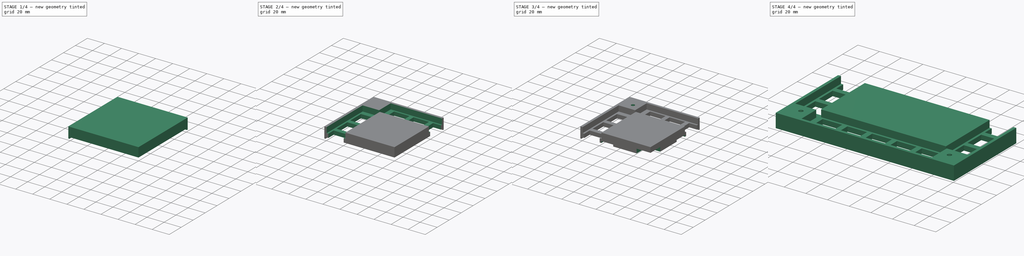
[diagram: build sequence overview — one tinted view per stage of 4, left to right]
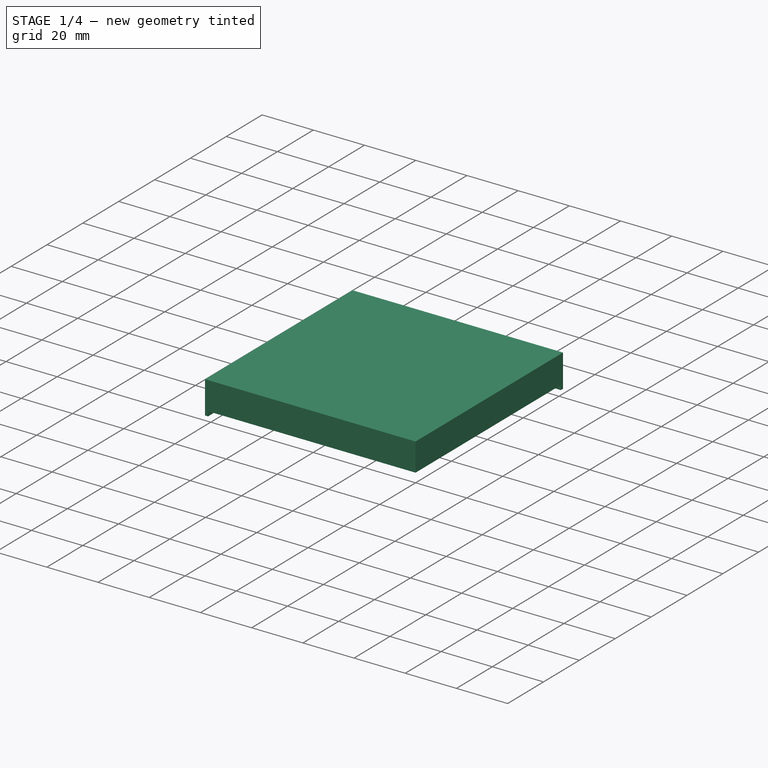
[diagram: stage 1 of 4 — iso view after this stage's code; geometry added in this stage tinted green]
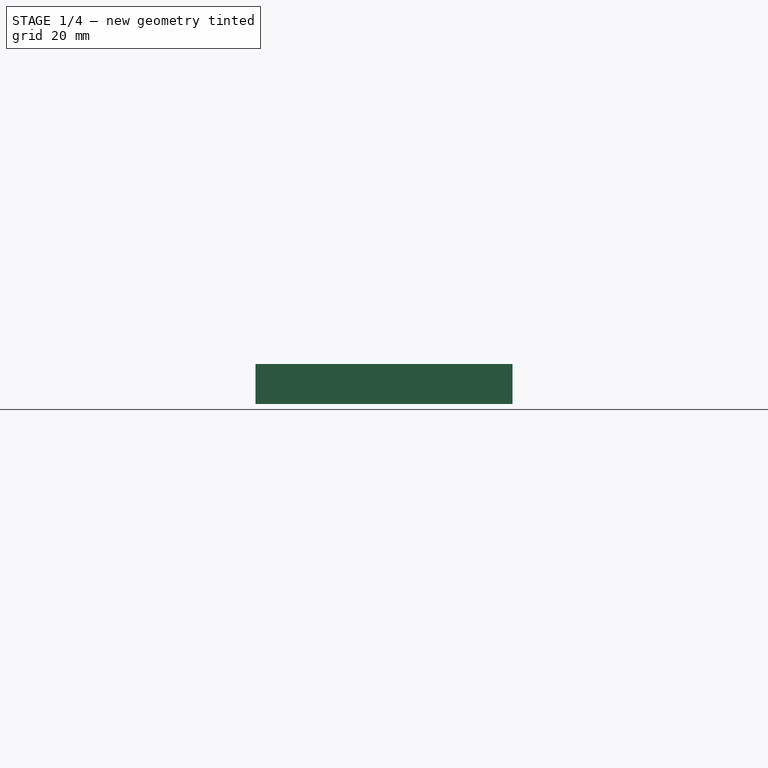
[diagram: stage 1 of 4 — front view after this stage's code; geometry added in this stage tinted green]
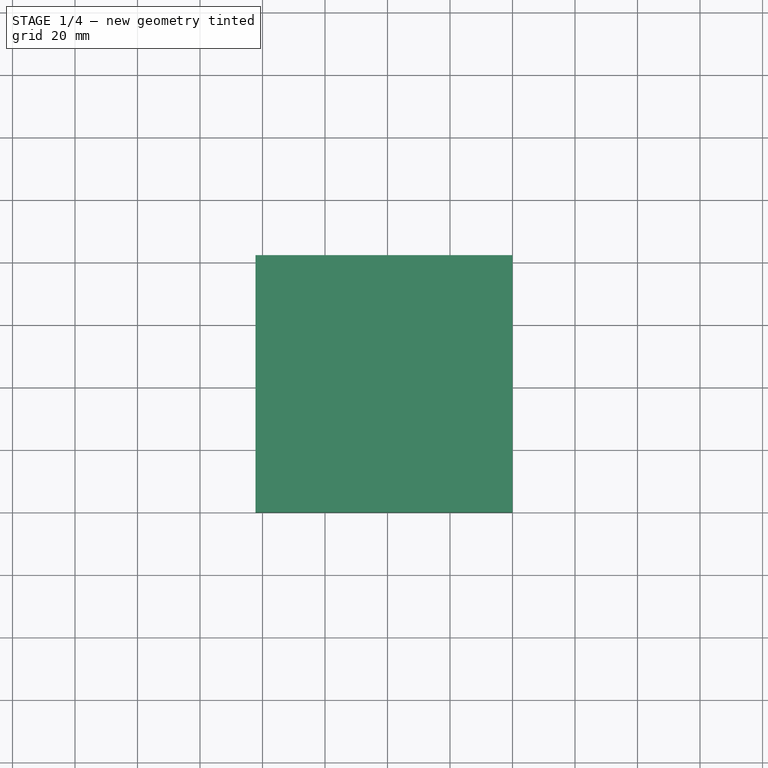
[diagram: stage 1 of 4 — top view after this stage's code; geometry added in this stage tinted green]
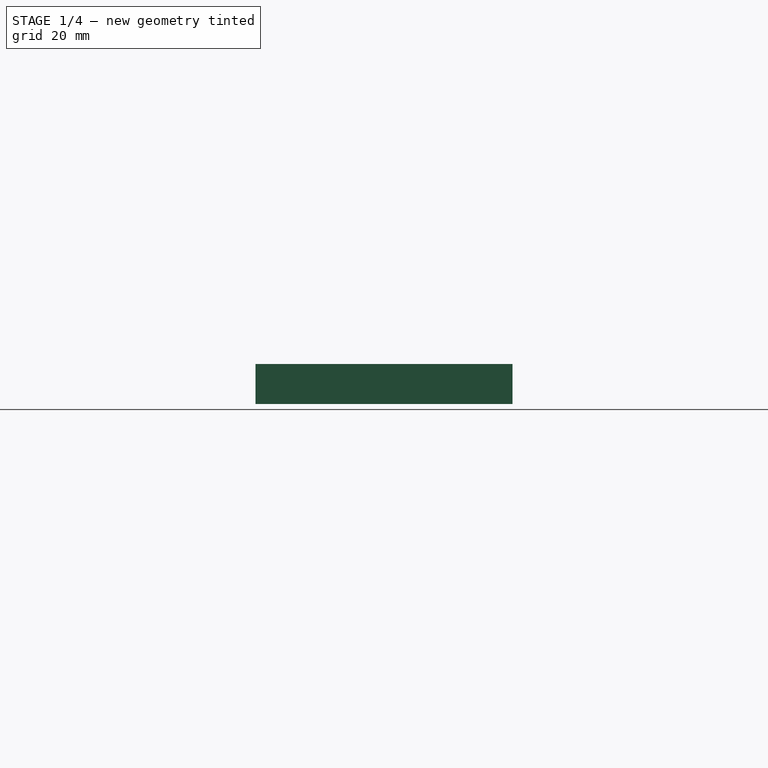
[diagram: stage 1 of 4 — right view after this stage's code; geometry added in this stage tinted green]
FCSTD DOCUMENT  (FreeCAD 0.20R29603 (Git))
Label: case_top
License: All rights reserved
LicenseURL: http://en.wikipedia.org/wiki/All_rights_reserved
objects: Sketcher::SketchObject×7, PartDesign::Pocket×5, PartDesign::Pad×2, PartDesign::Mirrored×1, PartDesign::MultiTransform×1, PartDesign::Body×1, Part::Mirroring×1
note: 25 computed .brp shape members not serialized (recipe doc carries the construction recipe); baked Part::Feature solids carry a one-line shape summary decoded from their .brp

FEATURE [Sketcher::SketchObject] Sketch
  FullyConstrained = true
  MapMode = 5
  Support = -> [XY_Plane]
  sketch-geometry (4):
    g0: LineSegment StartX=0 StartY=0 StartZ=0 EndX=-82.25 EndY=0 EndZ=0
    g1: LineSegment StartX=-82.25 StartY=0 StartZ=0 EndX=-82.25 EndY=82.25 EndZ=0
    g2: LineSegment StartX=-82.25 StartY=82.25 StartZ=0 EndX=0 EndY=82.25 EndZ=0
    g3: LineSegment StartX=0 StartY=82.25 StartZ=0 EndX=0 EndY=0 EndZ=0
  constraints (11):
    c: Coincident(g0,g1)
    c: Coincident(g1,g2)
    c: Coincident(g2,g3)
    c: Coincident(g3,g0)
    c: Horizontal(g0)
    c: Horizontal(g2)
    c: Vertical(g1)
    c: Vertical(g3)
    c: Coincident(g0,g-1)
    c: Equal(g3,g0)
    c: DistanceY(g3,g3) = 82.25
FEATURE [PartDesign::Pad] Pad
  Direction = (0,0,1)
  Length = 11
  Length2 = 10
  Profile = -> Sketch
  ReferenceAxis = -> Sketch [N_Axis]
  Type = 0
FEATURE [Sketcher::SketchObject] Sketch001
  ExternalGeometry = -> [Pad]
  FullyConstrained = true
  MapMode = 5
  Placement = pos=(0,0,0) rot=(1,0,0;3.14159rad)
  Support = -> [Pad]
  sketch-geometry (6):
    g0: LineSegment StartX=-82.25 StartY=0 StartZ=0 EndX=-82.25 EndY=-82.25 EndZ=0
    g1: LineSegment StartX=-82.25 StartY=-82.25 StartZ=0 EndX=0 EndY=-82.25 EndZ=0
    g2: LineSegment StartX=0 StartY=-82.25 StartZ=0 EndX=0 EndY=-81.05 EndZ=0
    g3: LineSegment StartX=0 StartY=-81.05 StartZ=0 EndX=-81.05 EndY=-81.05 EndZ=0
    g4: LineSegment StartX=-81.05 StartY=-81.05 StartZ=0 EndX=-81.05 EndY=0 EndZ=0
    g5: LineSegment StartX=-81.05 StartY=0 StartZ=0 EndX=-82.25 EndY=0 EndZ=0
  constraints (15):
    c: Coincident(g0,g-3)
    c: Coincident(g0,g-4)
    c: Coincident(g0,g1)
    c: Coincident(g1,g-5)
    c: Coincident(g1,g2)
    c: Vertical(g2)
    c: Coincident(g2,g3)
    c: Horizontal(g3)
    c: Coincident(g3,g4)
    c: Vertical(g4)
    c: Coincident(g4,g5)
    c: Coincident(g5,g0)
    c: Horizontal(g5)
    c: Equal(g2,g5)
    c: DistanceY(g2,g2) = 1.2
FEATURE [PartDesign::Pad] Pad001
  BaseFeature = -> Pad
  Direction = (0,0,-1)
  Length = 1.8
  Length2 = 10
  Profile = -> Sketch001
  ReferenceAxis = -> Sketch001 [N_Axis]
  Type = 0
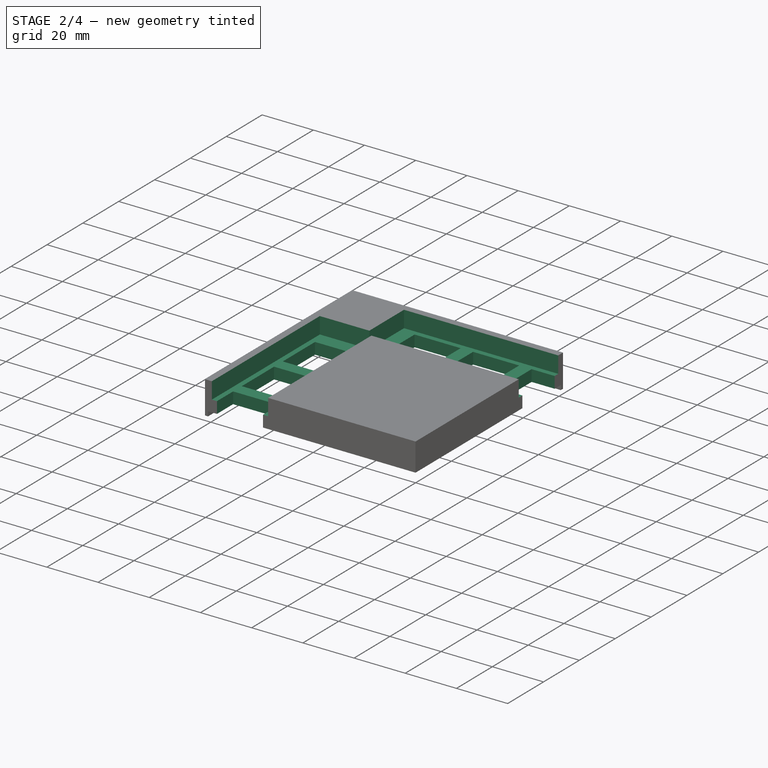
[diagram: stage 2 of 4 — iso view after this stage's code; geometry added in this stage tinted green]
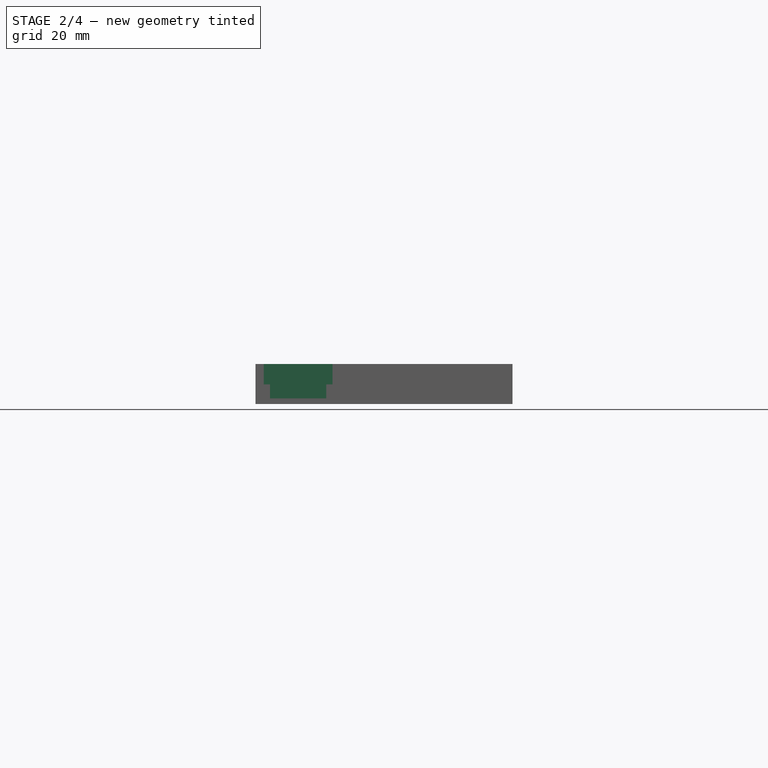
[diagram: stage 2 of 4 — front view after this stage's code; geometry added in this stage tinted green]
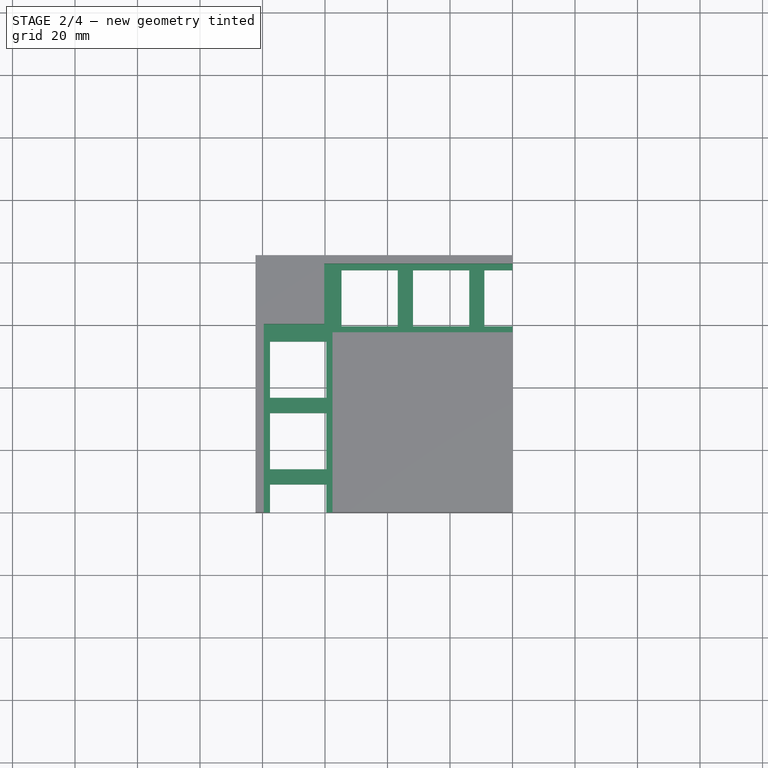
[diagram: stage 2 of 4 — top view after this stage's code; geometry added in this stage tinted green]
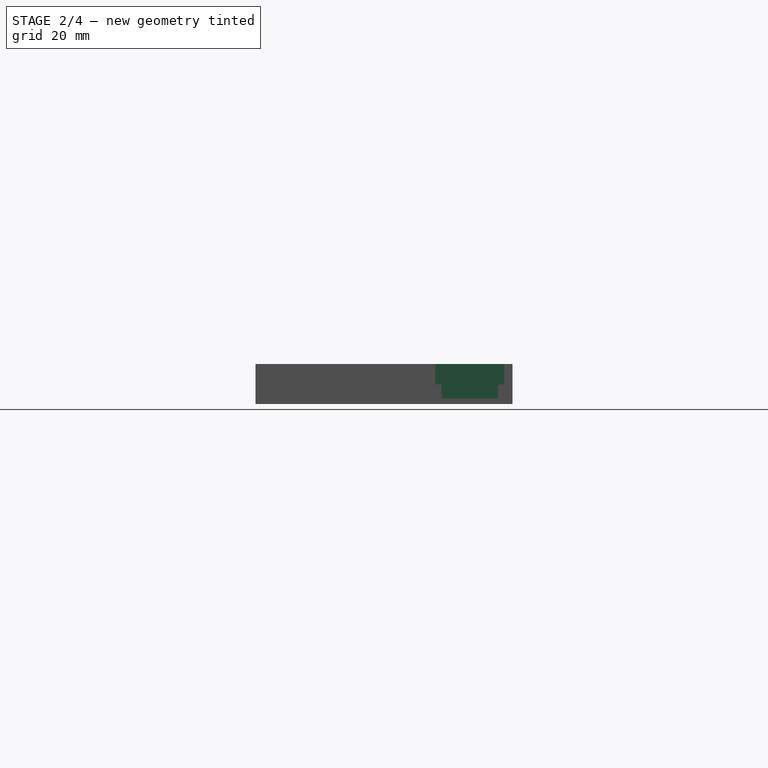
[diagram: stage 2 of 4 — right view after this stage's code; geometry added in this stage tinted green]
FEATURE [Sketcher::SketchObject] Sketch002
  AttachmentOffset = pos=(0,0,0) rot=(0,0,-1;1.5708rad)
  ExternalGeometry = -> [Pad001]
  FullyConstrained = true
  MapMode = 5
  Placement = pos=(0,0,11) rot=(0,0,-1;1.5708rad)
  Support = -> [Pad001]
  sketch-geometry (18):
    g0: LineSegment StartX=0 StartY=0 StartZ=0 EndX=-78.744 EndY=0 EndZ=0
    g1: LineSegment StartX=-78.744 StartY=0 StartZ=0 EndX=-78.744 EndY=-78.744 EndZ=0
    g2: LineSegment StartX=-78.744 StartY=-78.744 StartZ=0 EndX=0 EndY=-78.744 EndZ=0
    g3: LineSegment StartX=0 StartY=-78.744 StartZ=0 EndX=0 EndY=0 EndZ=0
    g4: LineSegment StartX=0 StartY=0 StartZ=0 EndX=-79.25 EndY=0 EndZ=0
    g5: LineSegment StartX=-79.25 StartY=0 StartZ=0 EndX=-79.25 EndY=79.25 EndZ=0
    g6: LineSegment StartX=-79.25 StartY=79.25 StartZ=0 EndX=0 EndY=79.25 EndZ=0
    g7: LineSegment StartX=0 StartY=79.25 StartZ=0 EndX=0 EndY=0 EndZ=0
    g8: LineSegment StartX=-79.584 StartY=0 StartZ=0 EndX=-79.584 EndY=-60.25 EndZ=0
    g9: LineSegment StartX=-79.584 StartY=-60.25 StartZ=0 EndX=-60.25 EndY=-60.25 EndZ=0
    g10: LineSegment StartX=-60.25 StartY=-60.25 StartZ=0 EndX=-60.25 EndY=-79.584 EndZ=0
    g11: LineSegment StartX=-60.25 StartY=-79.584 StartZ=0 EndX=0 EndY=-79.584 EndZ=0
    g12: LineSegment StartX=0 StartY=-79.584 StartZ=0 EndX=0 EndY=-57.584 EndZ=0
    g13: LineSegment StartX=0 StartY=-57.584 StartZ=0 EndX=-57.584 EndY=-57.584 EndZ=0
    g14: LineSegment StartX=-57.584 StartY=-57.584 StartZ=0 EndX=-57.584 EndY=0 EndZ=0
    g15: LineSegment StartX=-57.584 StartY=0 StartZ=0 EndX=-79.584 EndY=0 EndZ=0
    g16: GeomPoint X=-68.584 Y=0 Z=0
    g17: GeomPoint X=0 Y=-68.584 Z=0
  constraints (48):
    c: Coincident(g0,g1)
    c: Coincident(g1,g2)
    c: Coincident(g2,g3)
    c: Coincident(g3,g0)
    c: Horizontal(g0)
    c: Horizontal(g2)
    c: Vertical(g1)
    c: Vertical(g3)
    c: Coincident(g0,g-1)
    c: Equal(g2,g1)
    c: DistanceX(g2,g2) = 78.744
    c: Coincident(g4,g5)
    c: Coincident(g5,g6)
    c: Coincident(g6,g7)
    c: Coincident(g7,g4)
    c: Horizontal(g4)
    c: Horizontal(g6)
    c: Vertical(g5)
    c: Vertical(g7)
    c: Coincident(g4,g0)
    c: Equal(g6,g5)
    c: DistanceX(g-3,g5) = 3
    c: Vertical(g8)
    c: Coincident(g8,g9)
    c: Horizontal(g9)
    c: Coincident(g9,g10)
    c: Vertical(g10)
    c: Coincident(g10,g11)
    c: Horizontal(g11)
    c: Coincident(g11,g12)
    c: PointOnObject(g12,g3)
    c: Coincident(g12,g13)
    c: Horizontal(g13)
    c: Coincident(g13,g14)
    c: PointOnObject(g14,g0)
    c: Vertical(g14)
    c: Coincident(g14,g15)
    c: Coincident(g15,g8)
    c: DistanceX(g15,g15) = 22
    c: Vertical(g12)
    c: DistanceY(g12,g12) = 22
    c: DistanceX(g-3,g10) = 22
    c: DistanceY(g-3,g8) = 22
    c: Horizontal(g15)
    c: Symmetric(g8,g14,g16)
    c: DistanceX(g0,g16) = 10.16
    c: Symmetric(g11,g12,g17)
    c: DistanceY(g2,g17) = 10.16
FEATURE [PartDesign::Pocket] Pocket
  BaseFeature = -> Pad001
  Direction = (0,0,-1)
  Length = 6.5
  Length2 = 5
  Profile = -> Sketch002
  ReferenceAxis = -> Sketch002 [N_Axis]
  Type = 0
FEATURE [Sketcher::SketchObject] Sketch003
  ExternalGeometry = -> [Pocket]
  FullyConstrained = true
  MapMode = 5
  Placement = pos=(0,0,4.5) rot=(0,0,1;0rad)
  Support = -> [Pocket]
  sketch-geometry (32):
    g0: LineSegment StartX=1.52e-14 StartY=68.584 StartZ=0 EndX=-68.584 EndY=68.584 EndZ=0
    g1: LineSegment StartX=-68.584 StartY=68.584 StartZ=0 EndX=-68.584 EndY=1.42e-14 EndZ=0
    g2: LineSegment StartX=-54.72 StartY=77.584 StartZ=0 EndX=-54.72 EndY=59.584 EndZ=0
    g3: LineSegment StartX=-54.72 StartY=59.584 StartZ=0 EndX=-36.72 EndY=59.584 EndZ=0
    g4: LineSegment StartX=-36.72 StartY=59.584 StartZ=0 EndX=-36.72 EndY=77.584 EndZ=0
    g5: LineSegment StartX=-36.72 StartY=77.584 StartZ=0 EndX=-54.72 EndY=77.584 EndZ=0
    g6: GeomPoint X=-45.72 Y=68.584 Z=0
    g7: LineSegment StartX=-31.86 StartY=77.584 StartZ=0 EndX=-31.86 EndY=59.584 EndZ=0
    g8: LineSegment StartX=-31.86 StartY=59.584 StartZ=0 EndX=-13.86 EndY=59.584 EndZ=0
    g9: LineSegment StartX=-13.86 StartY=59.584 StartZ=0 EndX=-13.86 EndY=77.584 EndZ=0
    g10: LineSegment StartX=-13.86 StartY=77.584 StartZ=0 EndX=-31.86 EndY=77.584 EndZ=0
    g11: GeomPoint X=-22.86 Y=68.584 Z=0
    g12: LineSegment StartX=1.52e-14 StartY=77.584 StartZ=0 EndX=-9 EndY=77.584 EndZ=0
    g13: LineSegment StartX=-9 StartY=77.584 StartZ=0 EndX=-9 EndY=59.584 EndZ=0
    g14: LineSegment StartX=-9 StartY=59.584 StartZ=0 EndX=1.6e-14 EndY=59.584 EndZ=0
    g15: LineSegment StartX=1.52e-14 StartY=59.584 StartZ=0 EndX=1.52e-14 EndY=77.584 EndZ=0
    g16: LineSegment StartX=-77.584 StartY=1.52e-14 StartZ=0 EndX=-59.584 EndY=1.52e-14 EndZ=0
    g17: LineSegment StartX=-59.584 StartY=1.52e-14 StartZ=0 EndX=-59.584 EndY=9 EndZ=0
    g18: LineSegment StartX=-59.584 StartY=9 StartZ=0 EndX=-77.584 EndY=9 EndZ=0
    g19: LineSegment StartX=-77.584 StartY=9 StartZ=0 EndX=-77.584 EndY=1.6e-14 EndZ=0
    g20: LineSegment StartX=-77.584 StartY=31.86 StartZ=0 EndX=-77.584 EndY=13.86 EndZ=0
    g21: LineSegment StartX=-77.584 StartY=13.86 StartZ=0 EndX=-59.584 EndY=13.86 EndZ=0
    g22: LineSegment StartX=-59.584 StartY=13.86 StartZ=0 EndX=-59.584 EndY=31.86 EndZ=0
    g23: LineSegment StartX=-59.584 StartY=31.86 StartZ=0 EndX=-77.584 EndY=31.86 EndZ=0
    g24: GeomPoint X=-68.584 Y=22.86 Z=0
    g25: LineSegment StartX=-77.584 StartY=54.72 StartZ=0 EndX=-77.584 EndY=36.72 EndZ=0
    g26: LineSegment StartX=-77.584 StartY=36.72 StartZ=0 EndX=-59.584 EndY=36.72 EndZ=0
    g27: LineSegment StartX=-59.584 StartY=36.72 StartZ=0 EndX=-59.584 EndY=54.72 EndZ=0
    g28: LineSegment StartX=-59.584 StartY=54.72 StartZ=0 EndX=-77.584 EndY=54.72 EndZ=0
    g29: GeomPoint X=-68.584 Y=45.72 Z=0
    g30: GeomPoint X=1.52e-14 Y=68.584 Z=0
    g31: GeomPoint X=-68.584 Y=1.52e-14 Z=0
  constraints (81):
    c: Horizontal(g0)
    c: Coincident(g0,g1)
    c: Vertical(g1)
    c: Symmetric(g-6,g-5,g0)
    c: Symmetric(g-3,g-4,g1)
    c: Coincident(g2,g3)
    c: Coincident(g3,g4)
    c: Coincident(g4,g5)
    c: Coincident(g5,g2)
    c: Horizontal(g3)
    c: Horizontal(g5)
    c: Vertical(g2)
    c: Vertical(g4)
    c: Symmetric(g3,g2,g6)
    c: PointOnObject(g6,g0)
    c: Coincident(g7,g8)
    c: Coincident(g8,g9)
    c: Coincident(g9,g10)
    c: Coincident(g10,g7)
    c: Horizontal(g8)
    c: Horizontal(g10)
    c: Vertical(g7)
    c: Vertical(g9)
    c: Symmetric(g8,g7,g11)
    c: PointOnObject(g11,g0)
    c: Coincident(g12,g13)
    c: Coincident(g13,g14)
    c: Coincident(g14,g15)
    c: Coincident(g15,g12)
    c: Horizontal(g12)
    c: Horizontal(g14)
    c: Vertical(g13)
    c: Vertical(g15)
    c: Coincident(g16,g17)
    c: Coincident(g17,g18)
    c: Coincident(g18,g19)
    c: Coincident(g19,g16)
    c: Horizontal(g16)
    c: Horizontal(g18)
    c: Vertical(g17)
    c: Vertical(g19)
    c: Coincident(g20,g21)
    c: Coincident(g21,g22)
    c: Coincident(g22,g23)
    c: Coincident(g23,g20)
    c: Horizontal(g21)
    c: Horizontal(g23)
    c: Vertical(g20)
    c: Vertical(g22)
    c: Symmetric(g21,g20,g24)
    c: PointOnObject(g24,g1)
    c: Coincident(g25,g26)
    c: Coincident(g26,g27)
    c: Coincident(g27,g28)
    c: Coincident(g28,g25)
    c: Horizontal(g26)
    c: Horizontal(g28)
    c: Vertical(g25)
    c: Vertical(g27)
    c: Symmetric(g26,g25,g29)
    c: PointOnObject(g29,g1)
    c: Equal(g3,g4)
    c: Equal(g9,g8)
    c: Equal(g26,g27)
    c: Equal(g22,g21)
    c: Equal(g21,g18)
    c: Equal(g18,g26)
    c: DistanceX(g18,g18) = 18
    c: Equal(g4,g7)
    c: Equal(g7,g13)
    c: DistanceY(g13,g13) = 18
    c: Symmetric(g12,g14,g30)
    c: Coincident(g30,g0)
    c: Symmetric(g16,g16,g31)
    c: Coincident(g31,g1)
    c: DistanceX(g11,g0) = 22.86
    c: DistanceX(g6,g11) = 22.86
    c: DistanceY(g1,g24) = 22.86
    c: DistanceY(g24,g29) = 22.86
    c: Equal(g14,g17)
    c: DistanceX(g14,g14) = 9
FEATURE [PartDesign::Pocket] Pocket001
  BaseFeature = -> Pocket
  Direction = (0,0,-1)
  Length = 5
  Length2 = 5
  Profile = -> Sketch003
  ReferenceAxis = -> Sketch003 [N_Axis]
  Type = 0
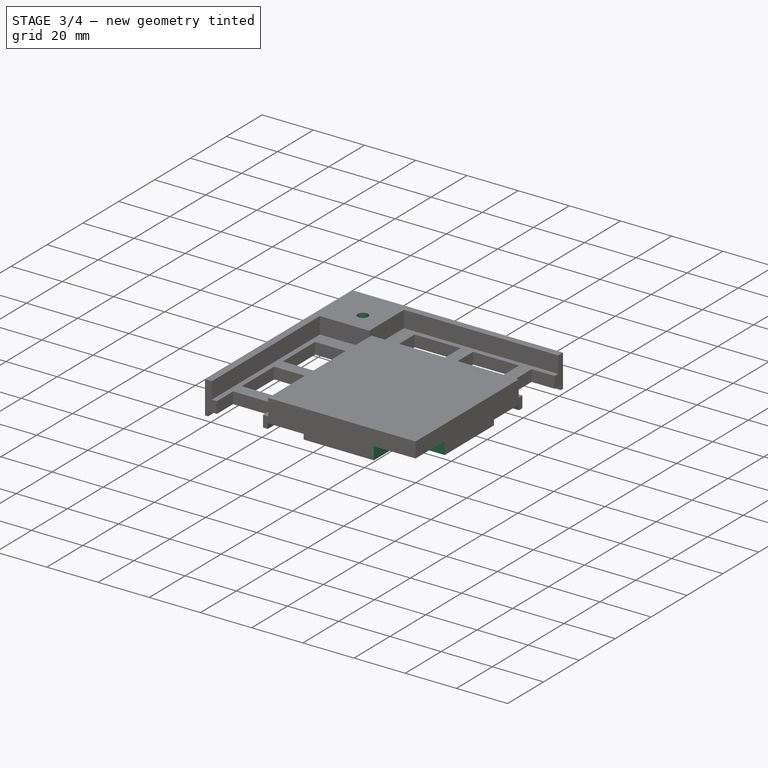
[diagram: stage 3 of 4 — iso view after this stage's code; geometry added in this stage tinted green]
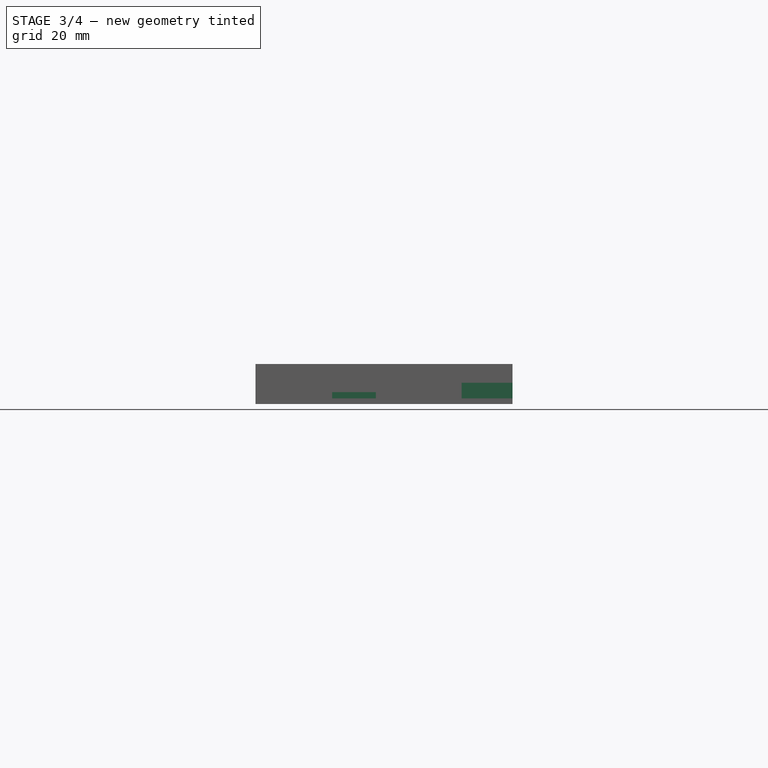
[diagram: stage 3 of 4 — front view after this stage's code; geometry added in this stage tinted green]
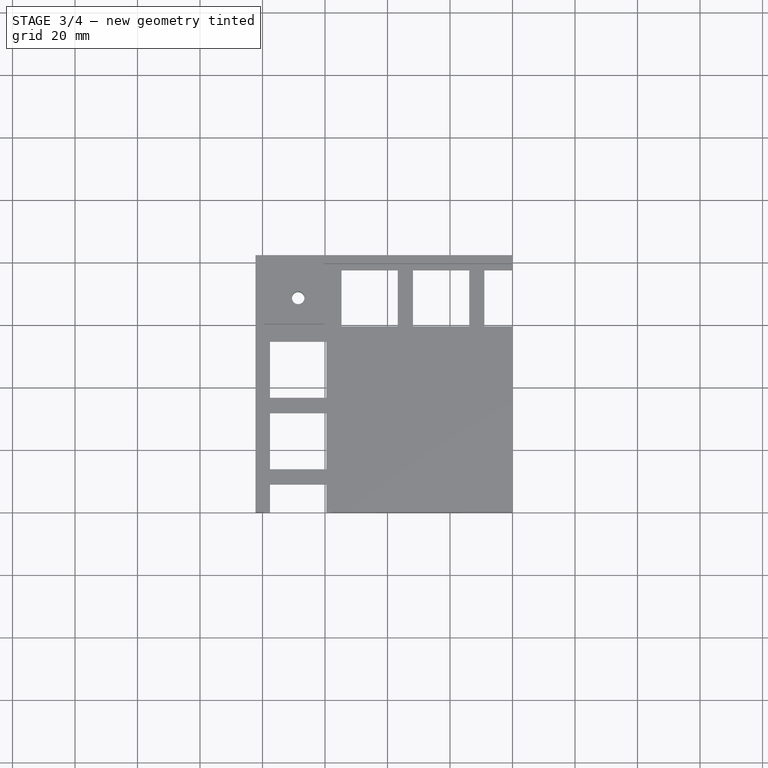
[diagram: stage 3 of 4 — top view after this stage's code; geometry added in this stage tinted green]
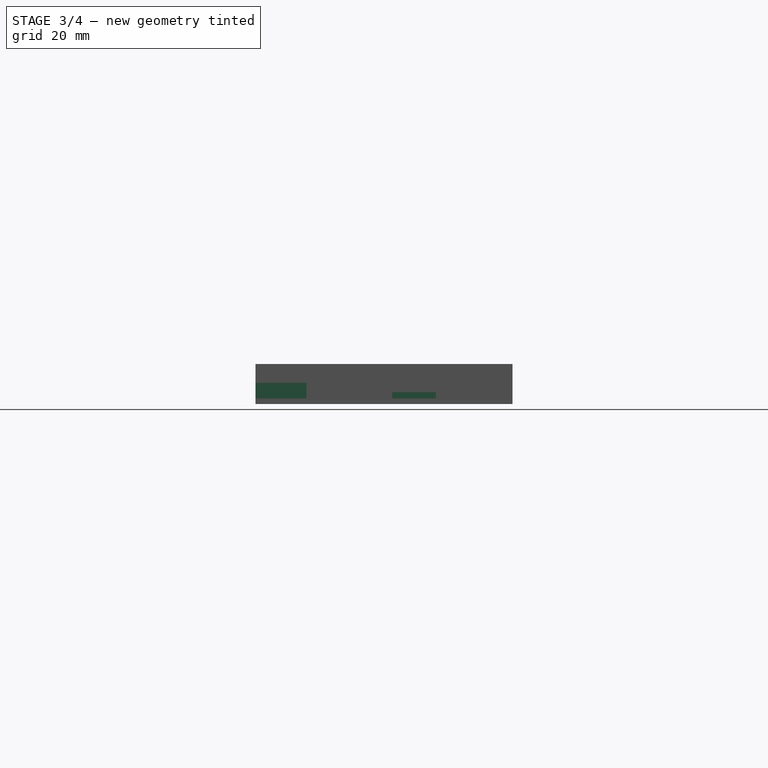
[diagram: stage 3 of 4 — right view after this stage's code; geometry added in this stage tinted green]
FEATURE [Sketcher::SketchObject] Sketch004
  ExternalGeometry = -> [Pocket001]
  FullyConstrained = true
  MapMode = 5
  Placement = pos=(0,0,0) rot=(1,0,0;3.14159rad)
  Support = -> [Pocket001]
  sketch-geometry (9):
    g0: LineSegment StartX=-77.584 StartY=-36.72 StartZ=0 EndX=-59.584 EndY=-54.72 EndZ=0
    g1: LineSegment StartX=-54.72 StartY=-59.584 StartZ=0 EndX=-36.72 EndY=-77.584 EndZ=0
    g2: GeomPoint X=-68.584 Y=-45.72 Z=0
    g3: GeomPoint X=-45.72 Y=-68.584 Z=0
    g4: LineSegment StartX=-68.584 StartY=-45.72 StartZ=0 EndX=-45.72 EndY=-45.72 EndZ=0
    g5: LineSegment StartX=-45.72 StartY=-45.72 StartZ=0 EndX=-45.72 EndY=-68.584 EndZ=0
    g6: LineSegment StartX=-45.72 StartY=-68.584 StartZ=0 EndX=-68.584 EndY=-68.584 EndZ=0
    g7: LineSegment StartX=-68.584 StartY=-68.584 StartZ=0 EndX=-68.584 EndY=-45.72 EndZ=0
    g8: Circle CenterX=-68.584 CenterY=-68.584 CenterZ=0 NormalX=0 NormalY=0 NormalZ=1 AngleXU=0 Radius=2
  constraints (18):
    c: Coincident(g0,g-4)
    c: Coincident(g0,g-3)
    c: Coincident(g1,g-6)
    c: Coincident(g1,g-5)
    c: Symmetric(g0,g0,g2)
    c: Symmetric(g1,g1,g3)
    c: Coincident(g4,g5)
    c: Coincident(g5,g6)
    c: Coincident(g6,g7)
    c: Coincident(g7,g4)
    c: Horizontal(g4)
    c: Horizontal(g6)
    c: Vertical(g5)
    c: Vertical(g7)
    c: Coincident(g4,g2)
    c: Coincident(g5,g3)
    c: Coincident(g8,g6)
    c: Diameter(g8) = 4
FEATURE [PartDesign::Pocket] Pocket002
  BaseFeature = -> Pocket001
  Direction = (0,0,1)
  Length = 13
  Length2 = 5
  Profile = -> Sketch004
  ReferenceAxis = -> Sketch004 [N_Axis]
  Type = 0
FEATURE [Sketcher::SketchObject] Sketch005
  FullyConstrained = true
  MapMode = 5
  Placement = pos=(0,0,0) rot=(1,0,0;3.14159rad)
  Support = -> [Pocket002]
  sketch-geometry (10):
    g0: LineSegment StartX=0 StartY=0 StartZ=0 EndX=-78.74 EndY=0 EndZ=0
    g1: LineSegment StartX=-78.74 StartY=0 StartZ=0 EndX=-78.74 EndY=-78.74 EndZ=0
    g2: LineSegment StartX=-78.74 StartY=-78.74 StartZ=0 EndX=0 EndY=-78.74 EndZ=0
    g3: LineSegment StartX=0 StartY=-78.74 StartZ=0 EndX=0 EndY=0 EndZ=0
    g4: LineSegment StartX=-57.74 StartY=4.86367e-11 StartZ=0 EndX=-57.74 EndY=-57.74 EndZ=0
    g5: LineSegment StartX=-57.74 StartY=-57.74 StartZ=0 EndX=3.4504e-11 EndY=-57.74 EndZ=0
    g6: LineSegment StartX=3.4504e-11 StartY=-57.74 StartZ=0 EndX=3.4504e-11 EndY=-43.74 EndZ=0
    g7: LineSegment StartX=3.4504e-11 StartY=-43.74 StartZ=0 EndX=-43.74 EndY=-43.74 EndZ=0
    g8: LineSegment StartX=-43.74 StartY=-43.74 StartZ=0 EndX=-43.74 EndY=4.86367e-11 EndZ=0
    g9: LineSegment StartX=-43.74 StartY=4.86367e-11 StartZ=0 EndX=-57.74 EndY=4.86367e-11 EndZ=0
  constraints (29):
    c: Coincident(g0,g1)
    c: Coincident(g1,g2)
    c: Coincident(g2,g3)
    c: Coincident(g3,g0)
    c: Horizontal(g0)
    c: Horizontal(g2)
    c: Vertical(g1)
    c: Vertical(g3)
    c: Coincident(g0,g-1)
    c: Equal(g2,g1)
    c: DistanceX(g2,g2) = 78.74
    c: Vertical(g4)
    c: Coincident(g4,g5)
    c: Horizontal(g5)
    c: Coincident(g5,g6)
    c: Coincident(g6,g7)
    c: Horizontal(g7)
    c: Coincident(g7,g8)
    c: Vertical(g8)
    c: Coincident(g8,g9)
    c: Coincident(g9,g4)
    c: Horizontal(g9)
    c: Vertical(g6)
    c: Equal(g9,g6)
    c: DistanceY(g2,g5) = 21
    c: DistanceX(g0,g4) = 21
    c: DistanceX(g0,g8) = 35
    c: PointOnObject(g6,g3)
    c: PointOnObject(g8,g0)
FEATURE [PartDesign::Pocket] Pocket003
  BaseFeature = -> Pocket002
  Direction = (0,0,1)
  Length = 2
  Length2 = 5
  Profile = -> Sketch005
  ReferenceAxis = -> Sketch005 [N_Axis]
  Type = 0
FEATURE [Sketcher::SketchObject] Sketch006
  FullyConstrained = true
  MapMode = 5
  Placement = pos=(0,0,0) rot=(1,0,0;3.14159rad)
  Support = -> [Pocket003]
  sketch-geometry (4):
    g0: LineSegment StartX=0 StartY=0 StartZ=0 EndX=-16.3 EndY=0 EndZ=0
    g1: LineSegment StartX=-16.3 StartY=0 StartZ=0 EndX=-16.3 EndY=-16.3 EndZ=0
    g2: LineSegment StartX=-16.3 StartY=-16.3 StartZ=0 EndX=0 EndY=-16.3 EndZ=0
    g3: LineSegment StartX=0 StartY=-16.3 StartZ=0 EndX=0 EndY=0 EndZ=0
  constraints (11):
    c: Coincident(g0,g1)
    c: Coincident(g1,g2)
    c: Coincident(g2,g3)
    c: Coincident(g3,g0)
    c: Horizontal(g0)
    c: Horizontal(g2)
    c: Vertical(g1)
    c: Vertical(g3)
    c: Coincident(g0,g-1)
    c: Equal(g2,g1)
    c: DistanceX(g2,g2) = 16.3
FEATURE [PartDesign::Pocket] Pocket004
  BaseFeature = -> Pocket003
  Direction = (0,0,1)
  Length = 5
  Length2 = 5
  Profile = -> Sketch006
  ReferenceAxis = -> Sketch006 [N_Axis]
  Type = 0
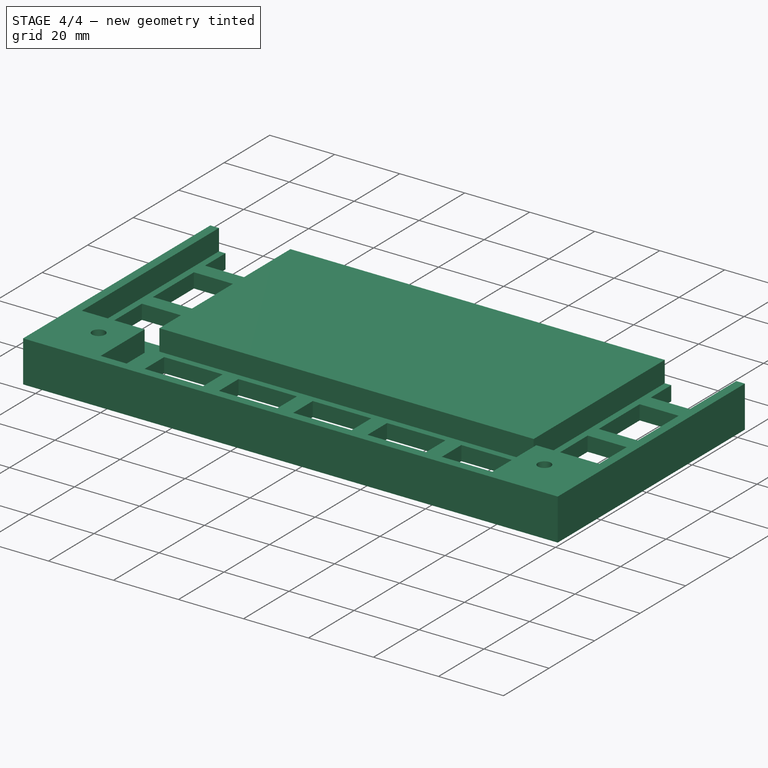
[diagram: stage 4 of 4 — iso view after this stage's code; geometry added in this stage tinted green]
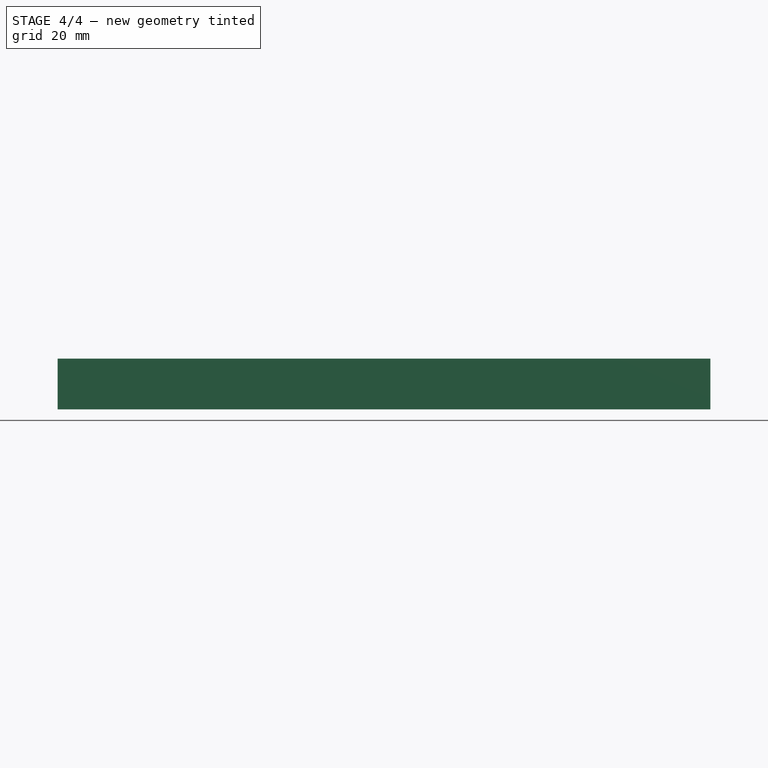
[diagram: stage 4 of 4 — front view after this stage's code; geometry added in this stage tinted green]
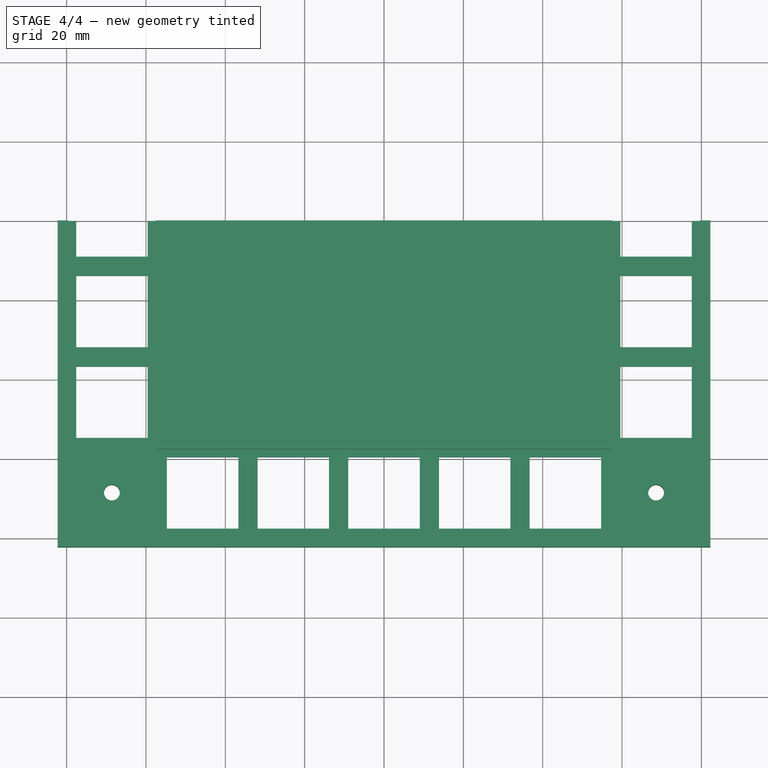
[diagram: stage 4 of 4 — top view after this stage's code; geometry added in this stage tinted green]
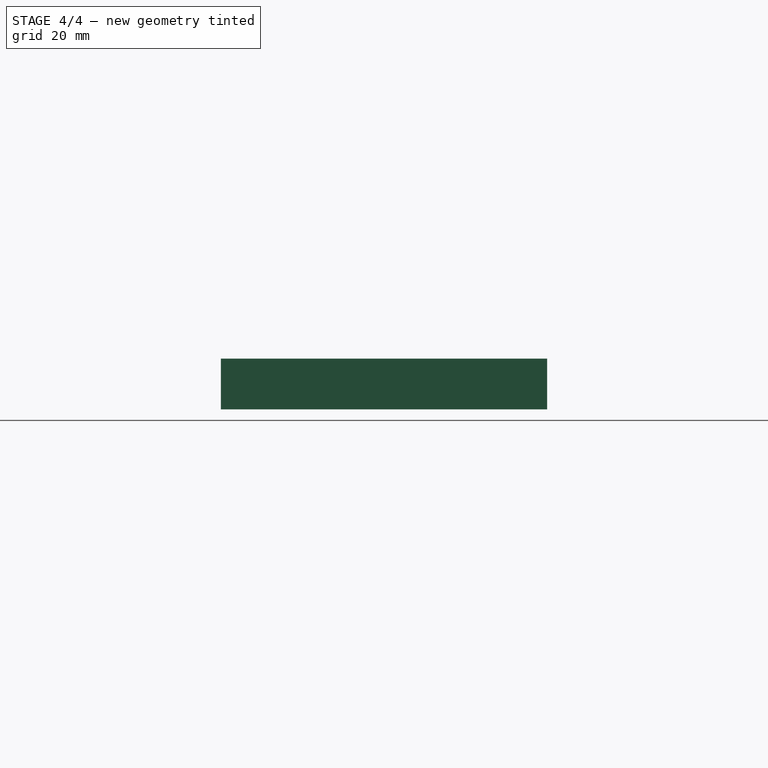
[diagram: stage 4 of 4 — right view after this stage's code; geometry added in this stage tinted green]
FEATURE [PartDesign::Mirrored] Mirrored
  MirrorPlane = -> YZ_Plane
FEATURE [PartDesign::MultiTransform] MultiTransform
  BaseFeature = -> Pocket004
  Originals = -> [Pad,Pad001,Pocket,Pocket001,Pocket002,Pocket003,Pocket004]
  Transformations = -> [Mirrored]
FEATURE [PartDesign::Body] Body
  Group = -> [Sketch,Pad,Sketch001,Pad001,Sketch002,Pocket,Sketch003,Pocket001,Sketch004,Pocket002,Sketch005,Pocket003,Sketch006,Pocket004,MultiTransform,Mirrored]
  Origin = -> Origin
  Tip = -> MultiTransform
FEATURE [Part::Mirroring] Part__Mirroring  label="Body (Mirror #1)"
  Base = (0,0,0)
  Normal = (0,1,0)
  Source = -> Body
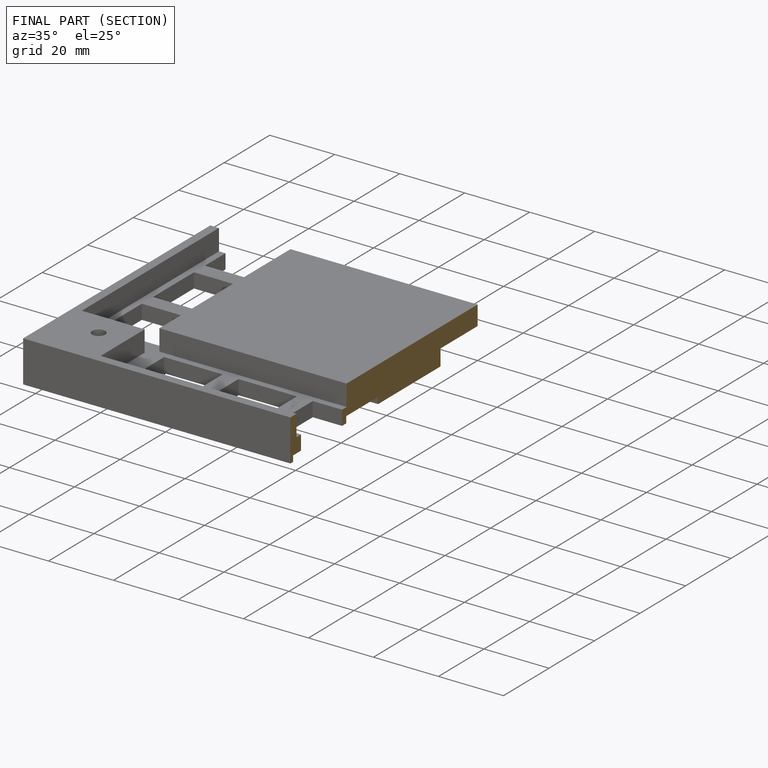
[diagram: finished part — half-section view (interior)]
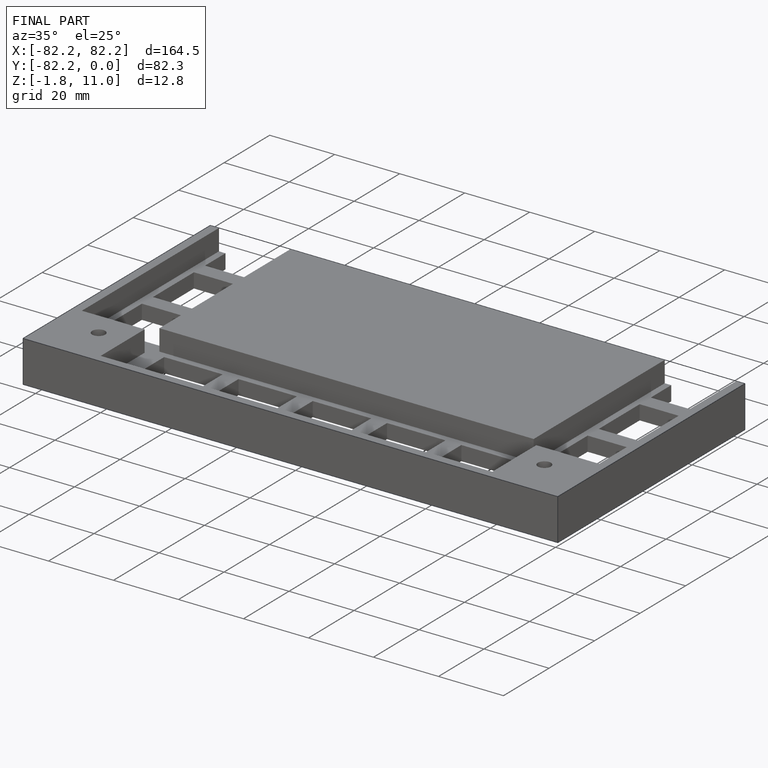
[diagram: finished part — iso view with bounding-box wireframe]
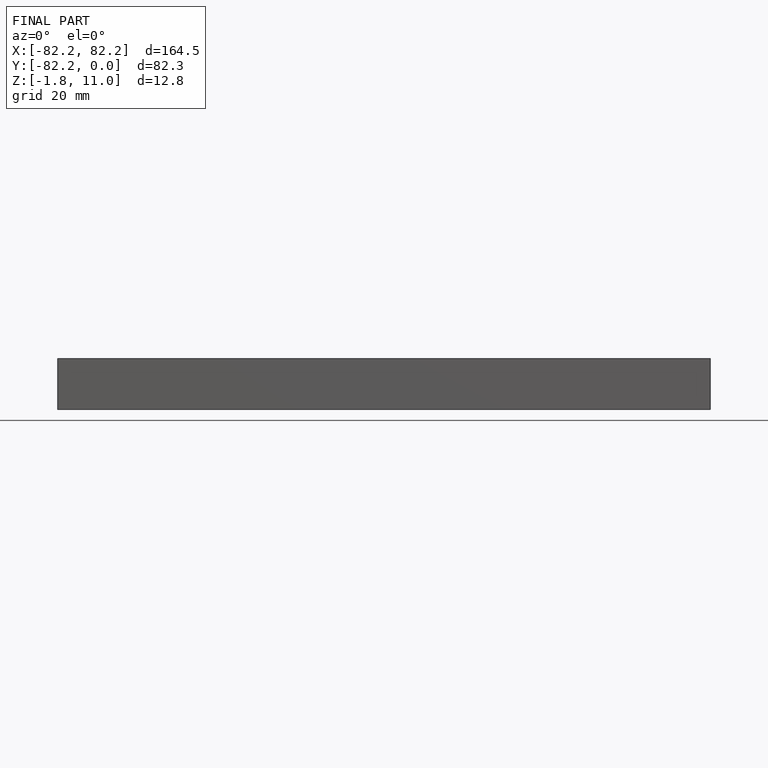
[diagram: finished part — front view with bounding-box wireframe]
